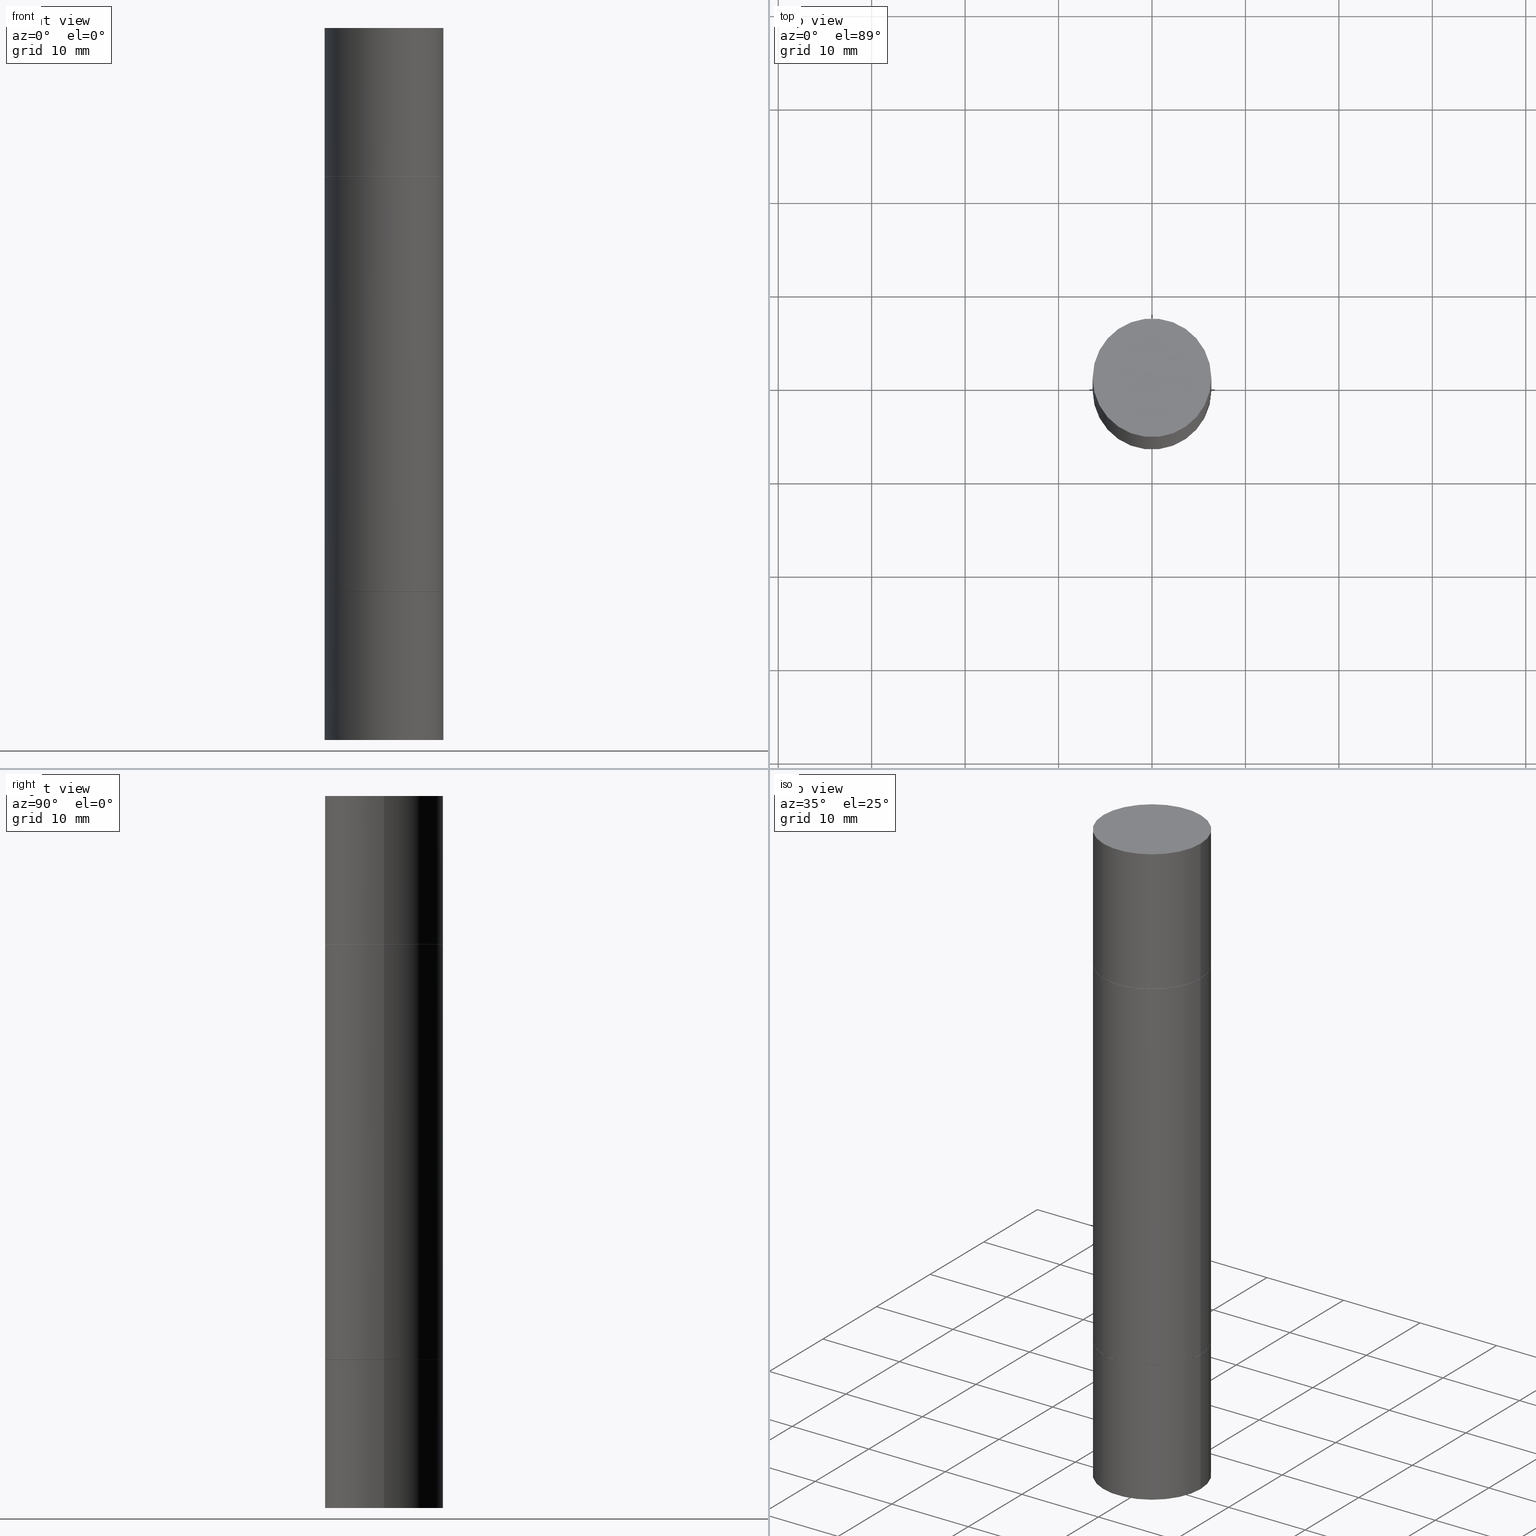
[diagram: canonical four-view strip — front | top / right | iso, engineering-drawing reading convention]
A machine part, canonical four-view strip (front | top / right | iso — engineering-drawing reading convention). The complete STEP part file that produces these views, byte-faithful:
ISO-10303-21;
HEADER;
FILE_DESCRIPTION (( 'STEP AP203' ),
    '1' );
FILE_NAME ('39639.STEP',
    '2024-03-04T15:43:50',
    ( '' ),
    ( '' ),
    'SwSTEP 2.0',
    'SolidWorks 2023',
    '' );
FILE_SCHEMA (( 'CONFIG_CONTROL_DESIGN' ));
ENDSEC;

DATA;
#1 = EDGE_CURVE ( 'NONE', #656, #668, #149, .T. ) ;
#2 = DIRECTION ( 'NONE',  ( 1.000000000000000000, -6.982962677686266711E-15, 0.000000000000000000 ) ) ;
#3 = PLANE ( 'NONE',  #558 ) ;
#4 = ORIENTED_EDGE ( 'NONE', *, *, #201, .F. ) ;
#5 = AXIS2_PLACEMENT_3D ( 'NONE', #102, #266, #150 ) ;
#6 = DIRECTION ( 'NONE',  ( -2.438088387897959769E-29, -3.492890411551753071E-15, -1.000000000000000000 ) ) ;
#7 = CARTESIAN_POINT ( 'NONE',  ( 5.807988414689700538E-29, -8.292268179752471696E-15, -2.375000000000000000 ) ) ;
#8 = DIRECTION ( 'NONE',  ( 1.000000000000000000, -6.982962677686267499E-15, 0.000000000000000000 ) ) ;
#9 = DIRECTION ( 'NONE',  ( -2.445468806185136597E-29, -3.492890411551752677E-15, -1.000000000000000000 ) ) ;
#10 = EDGE_LOOP ( 'NONE', ( #41, #455, #50, #465 ) ) ;
#11 = VERTEX_POINT ( 'NONE', #192 ) ;
#12 = DIRECTION ( 'NONE',  ( 1.000000000000000000, -6.982962677686266711E-15, 0.000000000000000000 ) ) ;
#13 = ADVANCED_FACE ( 'NONE', ( #354 ), #37, .F. ) ;
#14 = DIRECTION ( 'NONE',  ( -2.445468806185136877E-29, -3.492890411551753071E-15, -1.000000000000000000 ) ) ;
#15 = VERTEX_POINT ( 'NONE', #109 ) ;
#16 =( NAMED_UNIT ( * ) SI_UNIT ( $, .STERADIAN. ) SOLID_ANGLE_UNIT ( ) );
#17 = CIRCLE ( 'NONE', #380, 0.2500000000000000000 ) ;
#18 = FACE_OUTER_BOUND ( 'NONE', #200, .T. ) ;
#19 = EDGE_CURVE ( 'NONE', #11, #338, #366, .T. ) ;
#20 = ORIENTED_EDGE ( 'NONE', *, *, #309, .T. ) ;
#21 = PERSON_AND_ORGANIZATION ( #100, #93 ) ;
#22 = DIRECTION ( 'NONE',  ( -2.445468806185136597E-29, 3.491481338843145583E-15, 1.000000000000000000 ) ) ;
#23 = VERTEX_POINT ( 'NONE', #156 ) ;
#24 = EDGE_CURVE ( 'NONE', #352, #222, #606, .T. ) ;
#25 = CARTESIAN_POINT ( 'NONE',  ( 0.000000000000000000, 0.000000000000000000, 0.000000000000000000 ) ) ;
#26 = CARTESIAN_POINT ( 'NONE',  ( -0.2500000000000000000, 1.776356839400250465E-15, -1.229733772563726445E-29 ) ) ;
#27 = CONICAL_SURFACE ( 'NONE', #392, 0.2489999999999999991, 0.7853981633974141952 ) ;
#28 = CIRCLE ( 'NONE', #70, 0.2500000000000000000 ) ;
#29 = PLANE ( 'NONE',  #91 ) ;
#30 = DATE_TIME_ROLE ( 'creation_date' ) ;
#31 = EDGE_CURVE ( 'NONE', #15, #136, #584, .T. ) ;
#32 = CARTESIAN_POINT ( 'NONE',  ( 0.000000000000000000, 0.000000000000000000, -1.499999999999999556 ) ) ;
#33 = ORIENTED_EDGE ( 'NONE', *, *, #550, .F. ) ;
#34 = SHAPE_DEFINITION_REPRESENTATION ( #678, #121 ) ;
#35 = ORIENTED_EDGE ( 'NONE', *, *, #113, .F. ) ;
#36 = DIRECTION ( 'NONE',  ( -2.445468806185136877E-29, -3.492890411551753071E-15, -1.000000000000000000 ) ) ;
#37 = PLANE ( 'NONE',  #661 ) ;
#38 = CALENDAR_DATE ( 2024, 4, 3 ) ;
#39 = DIRECTION ( 'NONE',  ( 1.000000000000000000, -6.982962677686270655E-15, 0.000000000000000000 ) ) ;
#40 = CIRCLE ( 'NONE', #532, 0.2500000000000000000 ) ;
#41 = ORIENTED_EDGE ( 'NONE', *, *, #318, .F. ) ;
#42 = EDGE_LOOP ( 'NONE', ( #286, #619, #629, #294 ) ) ;
#43 = DIRECTION ( 'NONE',  ( -2.445468806185136597E-29, -3.492890411551752677E-15, -1.000000000000000000 ) ) ;
#44 = EDGE_CURVE ( 'NONE', #469, #447, #643, .T. ) ;
#45 = PRODUCT_RELATED_PRODUCT_CATEGORY ( 'detail', '', ( #566 ) ) ;
#46 = CARTESIAN_POINT ( 'NONE',  ( 0.2500000000000000000, -3.926683567578497071E-15, -0.6249999999999988898 ) ) ;
#47 = CYLINDRICAL_SURFACE ( 'NONE', #337, 0.2500000000000000000 ) ;
#48 = AXIS2_PLACEMENT_3D ( 'NONE', #117, #217, #264 ) ;
#49 = AXIS2_PLACEMENT_3D ( 'NONE', #516, #464, #194 ) ;
#50 = ORIENTED_EDGE ( 'NONE', *, *, #511, .T. ) ;
#51 = PLANE ( 'NONE',  #495 ) ;
#52 = APPROVAL ( #332, 'UNSPECIFIED' ) ;
#53 = CARTESIAN_POINT ( 'NONE',  ( 0.2500000000000000000, -3.930176457990049608E-15, -0.6259999999999990017 ) ) ;
#54 = DIRECTION ( 'NONE',  ( 1.000000000000000000, -6.982962677686267499E-15, 0.000000000000000000 ) ) ;
#55 = CARTESIAN_POINT ( 'NONE',  ( 5.807988414689700538E-29, -8.292268179752471696E-15, -2.375000000000000000 ) ) ;
#56 = CYLINDRICAL_SURFACE ( 'NONE', #80, 0.2500000000000000000 ) ;
#57 = CIRCLE ( 'NONE', #367, 0.2500000000000000000 ) ;
#58 = ADVANCED_FACE ( 'NONE', ( #161 ), #27, .T. ) ;
#59 = VECTOR ( 'NONE', #484, 39.37007874015748854 ) ;
#60 = DIRECTION ( 'NONE',  ( 2.438088387897959769E-29, 3.492890411551753071E-15, 1.000000000000000000 ) ) ;
#61 = LINE ( 'NONE', #482, #444 ) ;
#62 = MANIFOLD_SOLID_BREP ( 'Mirror1[4]', #103 ) ;
#63 = DESIGN_CONTEXT ( 'detailed design', #603, 'design' ) ;
#64 = ADVANCED_FACE ( 'NONE', ( #373 ), #569, .T. ) ;
#65 = DIRECTION ( 'NONE',  ( -1.000000000000000000, 6.982962677686265922E-15, -9.839502134516470631E-33 ) ) ;
#66 = LINE ( 'NONE', #267, #492 ) ;
#67 = DATE_AND_TIME ( #609, #274 ) ;
#68 = DIRECTION ( 'NONE',  ( -2.445468806185136597E-29, -3.492890411551752677E-15, -1.000000000000000000 ) ) ;
#69 = VECTOR ( 'NONE', #255, 39.37007874015748854 ) ;
#70 = AXIS2_PLACEMENT_3D ( 'NONE', #630, #362, #146 ) ;
#71 = ORIENTED_EDGE ( 'NONE', *, *, #503, .F. ) ;
#72 = AXIS2_PLACEMENT_3D ( 'NONE', #399, #78, #383 ) ;
#73 = PERSON_AND_ORGANIZATION_ROLE ( 'design_supplier' ) ;
#74 = DIRECTION ( 'NONE',  ( 1.000000000000000000, -6.982962677686266711E-15, 0.000000000000000000 ) ) ;
#75 = ORIENTED_EDGE ( 'NONE', *, *, #44, .F. ) ;
#76 = APPROVAL_ROLE ( '' ) ;
#77 = CARTESIAN_POINT ( 'NONE',  ( 0.2500000000000000000, -3.926683567578497071E-15, -0.6249999999999988898 ) ) ;
#78 = DIRECTION ( 'NONE',  ( 2.445468806185136597E-29, 3.492890411551752677E-15, 1.000000000000000000 ) ) ;
#79 = CARTESIAN_POINT ( 'NONE',  ( 0.2489999999999999991, -3.919700604900811057E-15, -0.6249999999999988898 ) ) ;
#80 = AXIS2_PLACEMENT_3D ( 'NONE', #639, #599, #110 ) ;
#81 = CARTESIAN_POINT ( 'NONE',  ( 7.336406418555409790E-29, -1.047444401652943635E-14, -3.000000000000000444 ) ) ;
#82 = CIRCLE ( 'NONE', #72, 0.2500000000000000000 ) ;
#83 = ORIENTED_EDGE ( 'NONE', *, *, #113, .T. ) ;
#84 = ORIENTED_EDGE ( 'NONE', *, *, #363, .T. ) ;
#85 = ADVANCED_FACE ( 'NONE', ( #635 ), #425, .T. ) ;
#86 = EDGE_LOOP ( 'NONE', ( #478, #463 ) ) ;
#87 = DIRECTION ( 'NONE',  ( -2.445468806185136597E-29, -3.492890411551752677E-15, -1.000000000000000000 ) ) ;
#88 = CARTESIAN_POINT ( 'NONE',  ( 0.000000000000000000, -1.047655762559234344E-14, -2.999999999999999112 ) ) ;
#89 = PERSON_AND_ORGANIZATION ( #100, #93 ) ;
#90 = CARTESIAN_POINT ( 'NONE',  ( -0.2500000000000000000, -4.693112891255996450E-16, -0.6259999999999990017 ) ) ;
#91 = AXIS2_PLACEMENT_3D ( 'NONE', #493, #614, #349 ) ;
#92 = ORIENTED_EDGE ( 'NONE', *, *, #363, .F. ) ;
#93 = ORGANIZATION ( 'UNSPECIFIED', 'UNSPECIFIED', '' ) ;
#94 = ADVANCED_FACE ( 'NONE', ( #477 ), #3, .F. ) ;
#95 = CARTESIAN_POINT ( 'NONE',  ( 0.2500000000000000000, -1.222229829501391170E-14, -2.999999999999999112 ) ) ;
#96 = VERTEX_POINT ( 'NONE', #421 ) ;
#97 = DATE_TIME_ROLE ( 'classification_date' ) ;
#98 = FACE_OUTER_BOUND ( 'NONE', #10, .T. ) ;
#99 = ORIENTED_EDGE ( 'NONE', *, *, #281, .T. ) ;
#100 = PERSON ( 'UNSPECIFIED', 'UNSPECIFIED', 'UNSPECIFIED', ('UNSPECIFIED'), ('UNSPECIFIED'), ('UNSPECIFIED') ) ;
#101 = APPROVAL ( #548, 'UNSPECIFIED' ) ;
#102 = CARTESIAN_POINT ( 'NONE',  ( 1.745740669421624462E-15, 0.2499999999999917011, -2.375000000000000888 ) ) ;
#103 = CLOSED_SHELL ( 'NONE', ( #218, #235, #94, #162 ) ) ;
#104 = AXIS2_PLACEMENT_3D ( 'NONE', #567, #673, #237 ) ;
#105 = AXIS2_PLACEMENT_3D ( 'NONE', #55, #111, #646 ) ;
#106 = PLANE ( 'NONE',  #164 ) ;
#107 = DIRECTION ( 'NONE',  ( 0.7071067811865232589, -2.468850131082003836E-15, 0.7071067811865715536 ) ) ;
#108 = DIRECTION ( 'NONE',  ( -2.445468806185136597E-29, -3.492890411551752677E-15, -1.000000000000000000 ) ) ;
#109 = CARTESIAN_POINT ( 'NONE',  ( -0.2500000000000000000, 6.257098548958748880E-16, 1.092739197465709232E-15 ) ) ;
#110 = DIRECTION ( 'NONE',  ( 1.000000000000000000, -6.982962677686270655E-15, 0.000000000000000000 ) ) ;
#111 = DIRECTION ( 'NONE',  ( -2.445468806185136597E-29, 3.491481338843145583E-15, 1.000000000000000000 ) ) ;
#112 = CYLINDRICAL_SURFACE ( 'NONE', #500, 0.2499999999999998335 ) ;
#113 = EDGE_CURVE ( 'NONE', #307, #11, #370, .T. ) ;
#114 = CIRCLE ( 'NONE', #457, 0.2500000000000000000 ) ;
#115 = ORIENTED_EDGE ( 'NONE', *, *, #138, .T. ) ;
#116 = DIRECTION ( 'NONE',  ( 1.000000000000000000, -6.982962677686266711E-15, 0.000000000000000000 ) ) ;
#117 = CARTESIAN_POINT ( 'NONE',  ( 0.000000000000000000, 0.000000000000000000, 0.000000000000000000 ) ) ;
#118 = DIRECTION ( 'NONE',  ( -2.445468806185136597E-29, -3.492890411551752677E-15, -1.000000000000000000 ) ) ;
#119 = ORIENTED_EDGE ( 'NONE', *, *, #511, .F. ) ;
#120 = CARTESIAN_POINT ( 'NONE',  ( 5.805542945883514935E-29, -2.184435788568482141E-15, -0.6259999999999990017 ) ) ;
#121 = ADVANCED_BREP_SHAPE_REPRESENTATION ( '39639', ( #519, #292, #283, #62, #525, #252 ), #189 ) ;
#122 = ORIENTED_EDGE ( 'NONE', *, *, #488, .F. ) ;
#123 = AXIS2_PLACEMENT_3D ( 'NONE', #244, #353, #139 ) ;
#124 = PERSON_AND_ORGANIZATION ( #100, #93 ) ;
#125 = DIRECTION ( 'NONE',  ( 0.000000000000000000, 3.492185875197449524E-15, 1.000000000000000000 ) ) ;
#126 = DIRECTION ( 'NONE',  ( -1.000000000000000000, 6.982962677686265922E-15, -9.839502134516470631E-33 ) ) ;
#127 = ORIENTED_EDGE ( 'NONE', *, *, #498, .F. ) ;
#128 = ORIENTED_EDGE ( 'NONE', *, *, #577, .T. ) ;
#129 = EDGE_LOOP ( 'NONE', ( #490, #248, #92, #547 ) ) ;
#130 = DATE_AND_TIME ( #442, #675 ) ;
#131 = DIRECTION ( 'NONE',  ( 1.000000000000000000, -6.982962677686266711E-15, 0.000000000000000000 ) ) ;
#132 = PRODUCT_DEFINITION ( 'UNKNOWN', '', #571, #63 ) ;
#133 = CIRCLE ( 'NONE', #456, 0.2489999999999999991 ) ;
#134 = CARTESIAN_POINT ( 'NONE',  ( -0.2489999999999999991, -6.517718313361599048E-15, -2.375000000000000000 ) ) ;
#135 = VERTEX_POINT ( 'NONE', #590 ) ;
#136 = VERTEX_POINT ( 'NONE', #485 ) ;
#137 = CYLINDRICAL_SURFACE ( 'NONE', #645, 0.2500000000000000000 ) ;
#138 = EDGE_CURVE ( 'NONE', #222, #656, #61, .T. ) ;
#139 = DIRECTION ( 'NONE',  ( 1.000000000000000000, -6.982962677686266711E-15, 0.000000000000000000 ) ) ;
#140 = DATE_AND_TIME ( #561, #229 ) ;
#141 = DIRECTION ( 'NONE',  ( 1.000000000000000000, -6.982962677686266711E-15, 0.000000000000000000 ) ) ;
#142 = VECTOR ( 'NONE', #564, 39.37007874015748854 ) ;
#143 = ORIENTED_EDGE ( 'NONE', *, *, #520, .F. ) ;
#144 = AXIS2_PLACEMENT_3D ( 'NONE', #679, #634, #368 ) ;
#145 = ORIENTED_EDGE ( 'NONE', *, *, #530, .F. ) ;
#146 = DIRECTION ( 'NONE',  ( 1.000000000000000000, -6.982962677686266711E-15, 0.000000000000000000 ) ) ;
#147 = ORIENTED_EDGE ( 'NONE', *, *, #520, .T. ) ;
#148 = DIRECTION ( 'NONE',  ( -2.445468806185136597E-29, -3.492890411551752677E-15, -1.000000000000000000 ) ) ;
#149 = LINE ( 'NONE', #467, #625 ) ;
#150 = DIRECTION ( 'NONE',  ( -1.000000000000000000, 6.982962677686265922E-15, -4.876176775795935793E-29 ) ) ;
#151 = AXIS2_PLACEMENT_3D ( 'NONE', #375, #324, #215 ) ;
#152 = DIRECTION ( 'NONE',  ( 1.000000000000000000, -6.982962677686267499E-15, 0.000000000000000000 ) ) ;
#153 = CIRCLE ( 'NONE', #105, 0.2500000000000000000 ) ;
#154 = AXIS2_PLACEMENT_3D ( 'NONE', #203, #427, #589 ) ;
#155 = CARTESIAN_POINT ( 'NONE',  ( 5.807988414689700538E-29, -2.180942898156930788E-15, -0.6249999999999988898 ) ) ;
#156 = CARTESIAN_POINT ( 'NONE',  ( 0.2500000000000000000, -1.743627060358652092E-15, 1.092739197465705287E-15 ) ) ;
#157 = CYLINDRICAL_SURFACE ( 'NONE', #647, 0.2499999999999998335 ) ;
#158 = ADVANCED_FACE ( 'NONE', ( #213 ), #112, .T. ) ;
#159 = DIRECTION ( 'NONE',  ( 1.000000000000000000, -6.982962677686269866E-15, 0.000000000000000000 ) ) ;
#160 = DIRECTION ( 'NONE',  ( 2.445468806185136597E-29, 3.492890411551752677E-15, 1.000000000000000000 ) ) ;
#161 = FACE_OUTER_BOUND ( 'NONE', #195, .T. ) ;
#162 = ADVANCED_FACE ( 'NONE', ( #208 ), #56, .T. ) ;
#163 = AXIS2_PLACEMENT_3D ( 'NONE', #241, #246, #305 ) ;
#164 = AXIS2_PLACEMENT_3D ( 'NONE', #476, #6, #256 ) ;
#165 = CARTESIAN_POINT ( 'NONE',  ( 5.807988414689700538E-29, -2.180942898156930788E-15, -0.6249999999999988898 ) ) ;
#166 = ORIENTED_EDGE ( 'NONE', *, *, #672, .F. ) ;
#167 = PERSON_AND_ORGANIZATION_ROLE ( 'creator' ) ;
#168 = DIRECTION ( 'NONE',  ( 1.000000000000000000, -6.982962677686266711E-15, 0.000000000000000000 ) ) ;
#169 = ORIENTED_EDGE ( 'NONE', *, *, #1, .T. ) ;
#170 = APPLICATION_PROTOCOL_DEFINITION ( 'international standard', 'config_control_design', 1994, #311 ) ;
#171 = DIRECTION ( 'NONE',  ( 2.445468806185136597E-29, 3.492890411551752677E-15, 1.000000000000000000 ) ) ;
#172 = CIRCLE ( 'NONE', #445, 0.2489999999999999991 ) ;
#173 = CC_DESIGN_APPROVAL ( #52, ( #571 ) ) ;
#174 = APPROVAL_DATE_TIME ( #130, #101 ) ;
#175 = ADVANCED_FACE ( 'NONE', ( #641 ), #529, .T. ) ;
#176 = CARTESIAN_POINT ( 'NONE',  ( 0.2489999999999999991, -1.003102588649635236E-14, -2.375000000000000000 ) ) ;
#177 = EDGE_LOOP ( 'NONE', ( #450, #662 ) ) ;
#178 = EDGE_LOOP ( 'NONE', ( #247, #71, #183, #466 ) ) ;
#179 = APPLICATION_PROTOCOL_DEFINITION ( 'international standard', 'config_control_design', 1994, #603 ) ;
#180 = CARTESIAN_POINT ( 'NONE',  ( 5.807988414689700538E-29, -2.180942898156930788E-15, -0.6249999999999988898 ) ) ;
#181 = EDGE_CURVE ( 'NONE', #268, #307, #133, .T. ) ;
#182 = VERTEX_POINT ( 'NONE', #330 ) ;
#183 = ORIENTED_EDGE ( 'NONE', *, *, #238, .T. ) ;
#184 = LINE ( 'NONE', #234, #423 ) ;
#185 = ORIENTED_EDGE ( 'NONE', *, *, #288, .T. ) ;
#186 = EDGE_LOOP ( 'NONE', ( #4, #253, #169, #398 ) ) ;
#187 = VECTOR ( 'NONE', #518, 39.37007874015748143 ) ;
#188 = CARTESIAN_POINT ( 'NONE',  ( -0.2489999999999999991, -4.709950929187094786E-16, -0.6249999999999988898 ) ) ;
#189 =( GEOMETRIC_REPRESENTATION_CONTEXT ( 3 ) GLOBAL_UNCERTAINTY_ASSIGNED_CONTEXT ( ( #243 ) ) GLOBAL_UNIT_ASSIGNED_CONTEXT ( ( #339, #544, #16 ) ) REPRESENTATION_CONTEXT ( 'NONE', 'WORKASPACE' ) );
#190 = EDGE_CURVE ( 'NONE', #674, #668, #219, .T. ) ;
#191 = CARTESIAN_POINT ( 'NONE',  ( -0.2499999999999998335, -8.761433126149462132E-15, -2.999999999999999112 ) ) ;
#192 = CARTESIAN_POINT ( 'NONE',  ( 0.2500000000000000000, -1.003451736783519537E-14, -2.374000000000000110 ) ) ;
#193 = CC_DESIGN_PERSON_AND_ORGANIZATION_ASSIGNMENT ( #437, #167, ( #571 ) ) ;
#194 = DIRECTION ( 'NONE',  ( 1.000000000000000000, -6.982962677686266711E-15, 4.876176775795935793E-29 ) ) ;
#195 = EDGE_LOOP ( 'NONE', ( #677, #513, #115, #265 ) ) ;
#196 = DIRECTION ( 'NONE',  ( 1.000000000000000000, -6.982962677686269866E-15, 0.000000000000000000 ) ) ;
#197 = VECTOR ( 'NONE', #310, 39.37007874015748143 ) ;
#198 = ORIENTED_EDGE ( 'NONE', *, *, #410, .F. ) ;
#199 = FACE_OUTER_BOUND ( 'NONE', #361, .T. ) ;
#200 = EDGE_LOOP ( 'NONE', ( #84, #371 ) ) ;
#201 = EDGE_CURVE ( 'NONE', #506, #674, #66, .T. ) ;
#202 = ORIENTED_EDGE ( 'NONE', *, *, #415, .F. ) ;
#203 = CARTESIAN_POINT ( 'NONE',  ( 5.807988414689700538E-29, -2.180942898156930788E-15, -0.6249999999999988898 ) ) ;
#204 = DIRECTION ( 'NONE',  ( 2.438088387897959769E-29, 3.492890411551753071E-15, 1.000000000000000000 ) ) ;
#205 = ADVANCED_FACE ( 'NONE', ( #435 ), #260, .T. ) ;
#206 = FACE_OUTER_BOUND ( 'NONE', #409, .T. ) ;
#207 = CLOSED_SHELL ( 'NONE', ( #381, #303, #562, #389 ) ) ;
#208 = FACE_OUTER_BOUND ( 'NONE', #414, .T. ) ;
#209 = AXIS2_PLACEMENT_3D ( 'NONE', #165, #396, #556 ) ;
#210 = SECURITY_CLASSIFICATION ( '', '', #275 ) ;
#211 = EDGE_CURVE ( 'NONE', #452, #182, #184, .T. ) ;
#212 = DIRECTION ( 'NONE',  ( 2.438088387897960049E-29, -3.491481338843145188E-15, -1.000000000000000000 ) ) ;
#213 = FACE_OUTER_BOUND ( 'NONE', #178, .T. ) ;
#214 = CARTESIAN_POINT ( 'NONE',  ( 5.805542945883514935E-29, -2.184435788568482141E-15, -0.6259999999999990017 ) ) ;
#215 = DIRECTION ( 'NONE',  ( 0.000000000000000000, 1.000000000000000000, -3.278217592397118229E-15 ) ) ;
#216 = PLANE ( 'NONE',  #5 ) ;
#217 = DIRECTION ( 'NONE',  ( -2.445468806185136597E-29, 3.491481338843145583E-15, 1.000000000000000000 ) ) ;
#218 = ADVANCED_FACE ( 'NONE', ( #438 ), #449, .T. ) ;
#219 = CIRCLE ( 'NONE', #151, 0.2499999999999998335 ) ;
#220 = CIRCLE ( 'NONE', #273, 0.2489999999999999991 ) ;
#221 = DIRECTION ( 'NONE',  ( -2.445468806185136597E-29, 3.491481338843145583E-15, 1.000000000000000000 ) ) ;
#222 = VERTEX_POINT ( 'NONE', #79 ) ;
#223 = ORIENTED_EDGE ( 'NONE', *, *, #19, .F. ) ;
#224 = APPROVAL_ROLE ( '' ) ;
#225 = CARTESIAN_POINT ( 'NONE',  ( 5.807988414689700538E-29, -8.292268179752471696E-15, -2.375000000000000000 ) ) ;
#226 = PERSON_AND_ORGANIZATION_ROLE ( 'design_owner' ) ;
#227 = DIRECTION ( 'NONE',  ( -2.445468806185136877E-29, 3.491481338843145188E-15, 1.000000000000000000 ) ) ;
#228 = AXIS2_PLACEMENT_3D ( 'NONE', #521, #351, #357 ) ;
#229 = LOCAL_TIME ( 10, 43, 50.00000000000000000, #459 ) ;
#230 = EDGE_CURVE ( 'NONE', #416, #271, #658, .T. ) ;
#231 = DIRECTION ( 'NONE',  ( 0.000000000000000000, 0.000000000000000000, 1.000000000000000000 ) ) ;
#232 = DIRECTION ( 'NONE',  ( 0.000000000000000000, 1.000000000000000000, -3.492185875197449524E-15 ) ) ;
#233 = CALENDAR_DATE ( 2024, 4, 3 ) ;
#234 = CARTESIAN_POINT ( 'NONE',  ( 0.2500000000000000000, -1.745740669421566678E-15, 1.219044193948983948E-29 ) ) ;
#235 = ADVANCED_FACE ( 'NONE', ( #657 ), #505, .T. ) ;
#236 = ORIENTED_EDGE ( 'NONE', *, *, #577, .F. ) ;
#237 = DIRECTION ( 'NONE',  ( 1.000000000000000000, -6.982962677686267499E-15, 0.000000000000000000 ) ) ;
#238 = EDGE_CURVE ( 'NONE', #517, #11, #443, .T. ) ;
#239 = CIRCLE ( 'NONE', #325, 0.2500000000000000000 ) ;
#240 = APPROVAL_ROLE ( '' ) ;
#241 = CARTESIAN_POINT ( 'NONE',  ( 3.668203209277703774E-29, -5.237222008264716599E-15, -1.499999999999999556 ) ) ;
#242 = APPROVAL ( #507, 'UNSPECIFIED' ) ;
#243 = UNCERTAINTY_MEASURE_WITH_UNIT (LENGTH_MEASURE( 1.000000000000000082E-05 ), #339, 'distance_accuracy_value', 'NONE');
#244 = CARTESIAN_POINT ( 'NONE',  ( 5.805542945883514935E-29, -2.184435788568482141E-15, -0.6259999999999990017 ) ) ;
#245 = VERTEX_POINT ( 'NONE', #77 ) ;
#246 = DIRECTION ( 'NONE',  ( -0.000000000000000000, -3.492185875197449130E-15, -1.000000000000000000 ) ) ;
#247 = ORIENTED_EDGE ( 'NONE', *, *, #386, .F. ) ;
#248 = ORIENTED_EDGE ( 'NONE', *, *, #201, .T. ) ;
#249 = CC_DESIGN_PERSON_AND_ORGANIZATION_ASSIGNMENT ( #124, #226, ( #566 ) ) ;
#250 = LINE ( 'NONE', #576, #197 ) ;
#251 = CIRCLE ( 'NONE', #346, 0.2500000000000000000 ) ;
#252 = AXIS2_PLACEMENT_3D ( 'NONE', #25, #231, #598 ) ;
#253 = ORIENTED_EDGE ( 'NONE', *, *, #341, .F. ) ;
#254 = LINE ( 'NONE', #263, #59 ) ;
#255 = DIRECTION ( 'NONE',  ( -0.7071067811865232589, 2.381258160591016070E-15, -0.7071067811865715536 ) ) ;
#256 = DIRECTION ( 'NONE',  ( 1.000000000000000000, -6.982962677686265922E-15, 9.839502134516470631E-33 ) ) ;
#257 = DIRECTION ( 'NONE',  ( -2.445468806185136597E-29, -3.492890411551752677E-15, -1.000000000000000000 ) ) ;
#258 = DIRECTION ( 'NONE',  ( -1.000000000000000000, 6.982962677686265922E-15, -4.876176775795935793E-29 ) ) ;
#259 = DIRECTION ( 'NONE',  ( 1.000000000000000000, -6.982962677686266711E-15, 0.000000000000000000 ) ) ;
#260 = CONICAL_SURFACE ( 'NONE', #209, 0.2489999999999999991, 0.7853981633974141952 ) ;
#261 = LOCAL_TIME ( 10, 43, 50.00000000000000000, #360 ) ;
#262 = ORIENTED_EDGE ( 'NONE', *, *, #503, .T. ) ;
#263 = CARTESIAN_POINT ( 'NONE',  ( 0.2489999999999999991, -3.919700604900811057E-15, -0.6249999999999988898 ) ) ;
#264 = DIRECTION ( 'NONE',  ( 1.000000000000000000, -6.982962677686266711E-15, 4.876176775795935793E-29 ) ) ;
#265 = ORIENTED_EDGE ( 'NONE', *, *, #341, .T. ) ;
#266 = DIRECTION ( 'NONE',  ( 2.438088387897960049E-29, -3.491481338843145188E-15, -1.000000000000000000 ) ) ;
#267 = CARTESIAN_POINT ( 'NONE',  ( -0.2499999999999998335, -8.761433126149462132E-15, -2.999999999999999112 ) ) ;
#268 = VERTEX_POINT ( 'NONE', #134 ) ;
#269 = APPROVAL_DATE_TIME ( #67, #52 ) ;
#270 = CARTESIAN_POINT ( 'NONE',  ( 0.2499999999999998335, -1.222229829501391012E-14, -2.999999999999999112 ) ) ;
#271 = VERTEX_POINT ( 'NONE', #610 ) ;
#272 = CLOSED_SHELL ( 'NONE', ( #472, #611, #597, #175 ) ) ;
#273 = AXIS2_PLACEMENT_3D ( 'NONE', #155, #524, #12 ) ;
#274 = LOCAL_TIME ( 10, 43, 50.00000000000000000, #541 ) ;
#275 = SECURITY_CLASSIFICATION_LEVEL ( 'unclassified' ) ;
#276 = CARTESIAN_POINT ( 'NONE',  ( 5.807988414689700538E-29, -2.180942898156930788E-15, -0.6249999999999988898 ) ) ;
#277 = ADVANCED_FACE ( 'NONE', ( #18 ), #282, .F. ) ;
#278 = ORIENTED_EDGE ( 'NONE', *, *, #281, .F. ) ;
#279 = CARTESIAN_POINT ( 'NONE',  ( 7.336406418555409790E-29, 2.113609062914567177E-18, 1.092739197465705287E-15 ) ) ;
#280 = ORIENTED_EDGE ( 'NONE', *, *, #31, .F. ) ;
#281 = EDGE_CURVE ( 'NONE', #245, #408, #239, .T. ) ;
#282 = PLANE ( 'NONE',  #653 ) ;
#283 = MANIFOLD_SOLID_BREP ( 'Mirror1[3]', #207 ) ;
#284 = ORIENTED_EDGE ( 'NONE', *, *, #637, .T. ) ;
#285 = AXIS2_PLACEMENT_3D ( 'NONE', #333, #539, #152 ) ;
#286 = ORIENTED_EDGE ( 'NONE', *, *, #24, .F. ) ;
#287 = AXIS2_PLACEMENT_3D ( 'NONE', #279, #171, #451 ) ;
#288 = EDGE_CURVE ( 'NONE', #15, #531, #300, .T. ) ;
#289 = COORDINATED_UNIVERSAL_TIME_OFFSET ( 5, 0, .BEHIND. ) ;
#290 = DIRECTION ( 'NONE',  ( -2.445468806185136597E-29, 3.491481338843145583E-15, 1.000000000000000000 ) ) ;
#291 = DIRECTION ( 'NONE',  ( 2.438088387897959769E-29, 3.492890411551753071E-15, 1.000000000000000000 ) ) ;
#292 = MANIFOLD_SOLID_BREP ( 'Mirror1[1]', #592 ) ;
#293 = DIRECTION ( 'NONE',  ( 1.000000000000000000, -6.982962677686266711E-15, 0.000000000000000000 ) ) ;
#294 = ORIENTED_EDGE ( 'NONE', *, *, #138, .F. ) ;
#295 = CARTESIAN_POINT ( 'NONE',  ( 0.2500000000000000000, -1.222229829501391170E-14, -2.999999999999999112 ) ) ;
#296 = DIRECTION ( 'NONE',  ( -2.445468806185136597E-29, 3.491481338843145583E-15, 1.000000000000000000 ) ) ;
#297 = ORIENTED_EDGE ( 'NONE', *, *, #488, .T. ) ;
#298 = EDGE_LOOP ( 'NONE', ( #591, #559 ) ) ;
#299 = AXIS2_PLACEMENT_3D ( 'NONE', #648, #321, #385 ) ;
#300 = CIRCLE ( 'NONE', #287, 0.2500000000000000000 ) ;
#301 = CC_DESIGN_APPROVAL ( #242, ( #210 ) ) ;
#302 = FACE_OUTER_BOUND ( 'NONE', #402, .T. ) ;
#303 = ADVANCED_FACE ( 'NONE', ( #651 ), #29, .T. ) ;
#304 = ORIENTED_EDGE ( 'NONE', *, *, #331, .F. ) ;
#305 = DIRECTION ( 'NONE',  ( 0.000000000000000000, 1.000000000000000000, -3.278217592397118229E-15 ) ) ;
#306 = ORIENTED_EDGE ( 'NONE', *, *, #586, .F. ) ;
#307 = VERTEX_POINT ( 'NONE', #176 ) ;
#308 = ORIENTED_EDGE ( 'NONE', *, *, #347, .T. ) ;
#309 = EDGE_CURVE ( 'NONE', #271, #182, #369, .T. ) ;
#310 = DIRECTION ( 'NONE',  ( -2.445468806185136877E-29, -3.492890411551753071E-15, -1.000000000000000000 ) ) ;
#311 = APPLICATION_CONTEXT ( 'configuration controlled 3d designs of mechanical parts and assemblies' ) ;
#312 = FACE_OUTER_BOUND ( 'NONE', #563, .T. ) ;
#313 = CONICAL_SURFACE ( 'NONE', #514, 0.2489999999999999991, 0.7853981633974141952 ) ;
#314 = AXIS2_PLACEMENT_3D ( 'NONE', #533, #60, #65 ) ;
#315 = DIRECTION ( 'NONE',  ( 1.000000000000000000, -6.982962677686265922E-15, 9.839502134516470631E-33 ) ) ;
#316 = ORIENTED_EDGE ( 'NONE', *, *, #288, .F. ) ;
#317 = FACE_OUTER_BOUND ( 'NONE', #543, .T. ) ;
#318 = EDGE_CURVE ( 'NONE', #469, #96, #636, .T. ) ;
#319 = CARTESIAN_POINT ( 'NONE',  ( -0.2500000000000000000, -8.761433126149462132E-15, -2.999999999999999112 ) ) ;
#320 = FACE_OUTER_BOUND ( 'NONE', #350, .T. ) ;
#321 = DIRECTION ( 'NONE',  ( 2.445468806185136597E-29, 3.492890411551752677E-15, 1.000000000000000000 ) ) ;
#322 = CARTESIAN_POINT ( 'NONE',  ( 0.2500000000000000000, -1.743627060358652092E-15, 1.092739197465705287E-15 ) ) ;
#323 = VECTOR ( 'NONE', #14, 39.37007874015748143 ) ;
#324 = DIRECTION ( 'NONE',  ( -0.000000000000000000, -3.492185875197449130E-15, -1.000000000000000000 ) ) ;
#325 = AXIS2_PLACEMENT_3D ( 'NONE', #180, #441, #654 ) ;
#326 = EDGE_CURVE ( 'NONE', #452, #416, #664, .T. ) ;
#327 = ORIENTED_EDGE ( 'NONE', *, *, #586, .T. ) ;
#328 = ORIENTED_EDGE ( 'NONE', *, *, #230, .F. ) ;
#329 = CARTESIAN_POINT ( 'NONE',  ( 0.2500000000000000000, -3.930176457990049608E-15, -0.6259999999999990017 ) ) ;
#330 = CARTESIAN_POINT ( 'NONE',  ( 0.2500000000000000000, -1.003800884917403837E-14, -2.375000000000000000 ) ) ;
#331 = EDGE_CURVE ( 'NONE', #338, #11, #355, .T. ) ;
#332 = APPROVAL_STATUS ( 'not_yet_approved' ) ;
#333 = CARTESIAN_POINT ( 'NONE',  ( 0.000000000000000000, -1.047655762559234344E-14, -2.999999999999999112 ) ) ;
#334 = EDGE_LOOP ( 'NONE', ( #328, #502, #429, #671 ) ) ;
#335 = PERSON_AND_ORGANIZATION_ROLE ( 'creator' ) ;
#336 = DIRECTION ( 'NONE',  ( 2.445468806185136597E-29, 3.492890411551752677E-15, 1.000000000000000000 ) ) ;
#337 = AXIS2_PLACEMENT_3D ( 'NONE', #618, #43, #39 ) ;
#338 = VERTEX_POINT ( 'NONE', #602 ) ;
#339 =( CONVERSION_BASED_UNIT ( 'INCH', #552 ) LENGTH_UNIT ( ) NAMED_UNIT ( #345 ) );
#340 = DIRECTION ( 'NONE',  ( 1.000000000000000000, -6.982962677686266711E-15, 0.000000000000000000 ) ) ;
#341 = EDGE_CURVE ( 'NONE', #656, #506, #57, .T. ) ;
#342 = DIRECTION ( 'NONE',  ( -2.445468806185136597E-29, 3.491481338843145583E-15, 1.000000000000000000 ) ) ;
#343 = PERSON_AND_ORGANIZATION ( #100, #93 ) ;
#344 = DIRECTION ( 'NONE',  ( 1.000000000000000000, -6.982962677686262766E-15, 0.000000000000000000 ) ) ;
#345 = DIMENSIONAL_EXPONENTS ( 1.000000000000000000, 0.000000000000000000, 0.000000000000000000, 0.000000000000000000, 0.000000000000000000, 0.000000000000000000, 0.000000000000000000 ) ;
#346 = AXIS2_PLACEMENT_3D ( 'NONE', #214, #640, #2 ) ;
#347 = EDGE_CURVE ( 'NONE', #384, #136, #501, .T. ) ;
#348 = CONICAL_SURFACE ( 'NONE', #628, 0.2489999999999999991, 0.7853981633974141952 ) ;
#349 = DIRECTION ( 'NONE',  ( -1.000000000000000000, 6.982962677686265922E-15, -9.839502134516470631E-33 ) ) ;
#350 = EDGE_LOOP ( 'NONE', ( #568, #358 ) ) ;
#351 = DIRECTION ( 'NONE',  ( -2.445468806185136597E-29, 3.491481338843145583E-15, 1.000000000000000000 ) ) ;
#352 = VERTEX_POINT ( 'NONE', #496 ) ;
#353 = DIRECTION ( 'NONE',  ( 2.445468806185136597E-29, 3.492890411551752677E-15, 1.000000000000000000 ) ) ;
#354 = FACE_OUTER_BOUND ( 'NONE', #177, .T. ) ;
#355 = CIRCLE ( 'NONE', #665, 0.2500000000000000000 ) ;
#356 = CC_DESIGN_SECURITY_CLASSIFICATION ( #210, ( #571 ) ) ;
#357 = DIRECTION ( 'NONE',  ( 1.000000000000000000, -6.982962677686269866E-15, 0.000000000000000000 ) ) ;
#358 = ORIENTED_EDGE ( 'NONE', *, *, #24, .T. ) ;
#359 = EDGE_CURVE ( 'NONE', #307, #268, #172, .T. ) ;
#360 = COORDINATED_UNIVERSAL_TIME_OFFSET ( 5, 0, .BEHIND. ) ;
#361 = EDGE_LOOP ( 'NONE', ( #316, #486, #600, #612 ) ) ;
#362 = DIRECTION ( 'NONE',  ( 2.445468806185136597E-29, 3.492890411551752677E-15, 1.000000000000000000 ) ) ;
#363 = EDGE_CURVE ( 'NONE', #668, #674, #570, .T. ) ;
#364 = CARTESIAN_POINT ( 'NONE',  ( 5.807988414689700538E-29, -2.180942898156930788E-15, -0.6249999999999988898 ) ) ;
#365 = ADVANCED_FACE ( 'NONE', ( #98 ), #313, .T. ) ;
#366 = CIRCLE ( 'NONE', #512, 0.2500000000000000000 ) ;
#367 = AXIS2_PLACEMENT_3D ( 'NONE', #120, #336, #74 ) ;
#368 = DIRECTION ( 'NONE',  ( 1.000000000000000000, -6.982962677686265922E-15, 4.876176775795935793E-29 ) ) ;
#369 = CIRCLE ( 'NONE', #617, 0.2500000000000000000 ) ;
#370 = LINE ( 'NONE', #587, #434 ) ;
#371 = ORIENTED_EDGE ( 'NONE', *, *, #190, .T. ) ;
#372 = FACE_OUTER_BOUND ( 'NONE', #572, .T. ) ;
#373 = FACE_OUTER_BOUND ( 'NONE', #42, .T. ) ;
#374 = LINE ( 'NONE', #424, #446 ) ;
#375 = CARTESIAN_POINT ( 'NONE',  ( 3.668203209277703774E-29, -5.237222008264716599E-15, -1.499999999999999556 ) ) ;
#376 = EDGE_LOOP ( 'NONE', ( #75, #145, #284, #262 ) ) ;
#377 = CARTESIAN_POINT ( 'NONE',  ( 1.745740669421639647E-15, 0.2499999999999895084, -3.000000000000001332 ) ) ;
#378 = DIRECTION ( 'NONE',  ( -2.445468806185136597E-29, 3.491481338843145583E-15, 1.000000000000000000 ) ) ;
#379 = CONICAL_SURFACE ( 'NONE', #228, 0.2489999999999999991, 0.7853981633974141952 ) ;
#380 = AXIS2_PLACEMENT_3D ( 'NONE', #642, #160, #595 ) ;
#381 = ADVANCED_FACE ( 'NONE', ( #199 ), #47, .T. ) ;
#382 = CC_DESIGN_PERSON_AND_ORGANIZATION_ASSIGNMENT ( #440, #650, ( #210 ) ) ;
#383 = DIRECTION ( 'NONE',  ( 1.000000000000000000, -6.982962677686266711E-15, 0.000000000000000000 ) ) ;
#384 = VERTEX_POINT ( 'NONE', #46 ) ;
#385 = DIRECTION ( 'NONE',  ( 1.000000000000000000, -6.982962677686266711E-15, 0.000000000000000000 ) ) ;
#386 = EDGE_CURVE ( 'NONE', #447, #338, #510, .T. ) ;
#387 = PERSON_AND_ORGANIZATION ( #100, #93 ) ;
#388 = CARTESIAN_POINT ( 'NONE',  ( 1.745740669421639647E-15, 0.2500000000000000000, 5.463695987328526437E-16 ) ) ;
#389 = ADVANCED_FACE ( 'NONE', ( #471 ), #137, .T. ) ;
#390 = DIRECTION ( 'NONE',  ( 1.000000000000000000, -6.982962677686269866E-15, 0.000000000000000000 ) ) ;
#391 = DIRECTION ( 'NONE',  ( 2.445468806185136597E-29, 3.492890411551752677E-15, 1.000000000000000000 ) ) ;
#392 = AXIS2_PLACEMENT_3D ( 'NONE', #535, #9, #680 ) ;
#393 = VECTOR ( 'NONE', #36, 39.37007874015748143 ) ;
#394 = CIRCLE ( 'NONE', #154, 0.2489999999999999991 ) ;
#395 = DATE_AND_TIME ( #233, #534 ) ;
#396 = DIRECTION ( 'NONE',  ( -2.445468806185136597E-29, -3.492890411551752677E-15, -1.000000000000000000 ) ) ;
#397 = CC_DESIGN_PERSON_AND_ORGANIZATION_ASSIGNMENT ( #387, #73, ( #571 ) ) ;
#398 = ORIENTED_EDGE ( 'NONE', *, *, #190, .F. ) ;
#399 = CARTESIAN_POINT ( 'NONE',  ( 5.807988414689700538E-29, -2.180942898156930788E-15, -0.6249999999999988898 ) ) ;
#400 = DIRECTION ( 'NONE',  ( -2.445468806185136877E-29, 3.491481338843145188E-15, 1.000000000000000000 ) ) ;
#401 = ADVANCED_FACE ( 'NONE', ( #411 ), #560, .T. ) ;
#402 = EDGE_LOOP ( 'NONE', ( #551, #660, #33, #574 ) ) ;
#403 = CARTESIAN_POINT ( 'NONE',  ( 5.807988414689700538E-29, -2.180942898156930788E-15, -0.6249999999999988898 ) ) ;
#404 = AXIS2_PLACEMENT_3D ( 'NONE', #276, #608, #340 ) ;
#405 = CYLINDRICAL_SURFACE ( 'NONE', #49, 0.2500000000000000000 ) ;
#406 = EDGE_CURVE ( 'NONE', #352, #506, #620, .T. ) ;
#407 = LINE ( 'NONE', #295, #581 ) ;
#408 = VERTEX_POINT ( 'NONE', #454 ) ;
#409 = EDGE_LOOP ( 'NONE', ( #565, #166 ) ) ;
#410 = EDGE_CURVE ( 'NONE', #416, #452, #40, .T. ) ;
#411 = FACE_OUTER_BOUND ( 'NONE', #129, .T. ) ;
#412 = AXIS2_PLACEMENT_3D ( 'NONE', #81, #221, #344 ) ;
#413 = CARTESIAN_POINT ( 'NONE',  ( -0.2500000000000000000, -7.606999258740704349E-15, -3.000000000000000444 ) ) ;
#414 = EDGE_LOOP ( 'NONE', ( #202, #579, #297, #99 ) ) ;
#415 = EDGE_CURVE ( 'NONE', #135, #408, #250, .T. ) ;
#416 = VERTEX_POINT ( 'NONE', #413 ) ;
#417 = CARTESIAN_POINT ( 'NONE',  ( 5.805542945883514935E-29, -2.184435788568482141E-15, -0.6259999999999990017 ) ) ;
#418 = CC_DESIGN_DATE_AND_TIME_ASSIGNMENT ( #395, #30, ( #132 ) ) ;
#419 = ORIENTED_EDGE ( 'NONE', *, *, #426, .T. ) ;
#420 = DIRECTION ( 'NONE',  ( 1.000000000000000000, -6.982962677686266711E-15, 0.000000000000000000 ) ) ;
#421 = CARTESIAN_POINT ( 'NONE',  ( 0.2489999999999999991, -3.919700604900811057E-15, -0.6249999999999988898 ) ) ;
#422 = CC_DESIGN_DATE_AND_TIME_ASSIGNMENT ( #575, #97, ( #210 ) ) ;
#423 = VECTOR ( 'NONE', #400, 39.37007874015748143 ) ;
#424 = CARTESIAN_POINT ( 'NONE',  ( -0.2489999999999999991, -6.523016767709821450E-15, -2.375000000000000000 ) ) ;
#425 = CYLINDRICAL_SURFACE ( 'NONE', #285, 0.2499999999999998335 ) ;
#426 = EDGE_CURVE ( 'NONE', #531, #384, #407, .T. ) ;
#427 = DIRECTION ( 'NONE',  ( 2.445468806185136597E-29, 3.492890411551752677E-15, 1.000000000000000000 ) ) ;
#428 = DIRECTION ( 'NONE',  ( -1.000000000000000000, 6.982962677686265922E-15, -9.839502134516470631E-33 ) ) ;
#429 = ORIENTED_EDGE ( 'NONE', *, *, #211, .T. ) ;
#430 = EDGE_LOOP ( 'NONE', ( #280, #236, #419, #308 ) ) ;
#431 = DIRECTION ( 'NONE',  ( 2.445468806185136597E-29, 3.492890411551752677E-15, 1.000000000000000000 ) ) ;
#432 = CARTESIAN_POINT ( 'NONE',  ( 5.807988414689700538E-29, -2.180942898156930788E-15, -0.6249999999999988898 ) ) ;
#433 = DIRECTION ( 'NONE',  ( 1.000000000000000000, -6.982962677686266711E-15, 0.000000000000000000 ) ) ;
#434 = VECTOR ( 'NONE', #107, 39.37007874015748854 ) ;
#435 = FACE_OUTER_BOUND ( 'NONE', #376, .T. ) ;
#436 = CIRCLE ( 'NONE', #523, 0.2500000000000000000 ) ;
#437 = PERSON_AND_ORGANIZATION ( #100, #93 ) ;
#438 = FACE_OUTER_BOUND ( 'NONE', #631, .T. ) ;
#439 = EDGE_CURVE ( 'NONE', #506, #656, #494, .T. ) ;
#440 = PERSON_AND_ORGANIZATION ( #100, #93 ) ;
#441 = DIRECTION ( 'NONE',  ( 2.445468806185136597E-29, 3.492890411551752677E-15, 1.000000000000000000 ) ) ;
#442 = CALENDAR_DATE ( 2024, 4, 3 ) ;
#443 = LINE ( 'NONE', #270, #593 ) ;
#444 = VECTOR ( 'NONE', #527, 39.37007874015748854 ) ;
#445 = AXIS2_PLACEMENT_3D ( 'NONE', #225, #549, #196 ) ;
#446 = VECTOR ( 'NONE', #638, 39.37007874015748854 ) ;
#447 = VERTEX_POINT ( 'NONE', #90 ) ;
#448 = MECHANICAL_CONTEXT ( 'NONE', #311, 'mechanical' ) ;
#449 = CYLINDRICAL_SURFACE ( 'NONE', #470, 0.2500000000000000000 ) ;
#450 = ORIENTED_EDGE ( 'NONE', *, *, #530, .T. ) ;
#451 = DIRECTION ( 'NONE',  ( 1.000000000000000000, -6.982962677686266711E-15, 0.000000000000000000 ) ) ;
#452 = VERTEX_POINT ( 'NONE', #663 ) ;
#453 = EDGE_LOOP ( 'NONE', ( #594, #20 ) ) ;
#454 = CARTESIAN_POINT ( 'NONE',  ( -0.2500000000000000000, 6.257098548958748880E-16, -0.6249999999999988898 ) ) ;
#455 = ORIENTED_EDGE ( 'NONE', *, *, #44, .T. ) ;
#456 = AXIS2_PLACEMENT_3D ( 'NONE', #7, #378, #159 ) ;
#457 = AXIS2_PLACEMENT_3D ( 'NONE', #417, #633, #420 ) ;
#458 = CIRCLE ( 'NONE', #655, 0.2500000000000000000 ) ;
#459 = COORDINATED_UNIVERSAL_TIME_OFFSET ( 5, 0, .BEHIND. ) ;
#460 = CARTESIAN_POINT ( 'NONE',  ( -0.2489999999999999991, -4.726788967118193123E-16, -0.6249999999999988898 ) ) ;
#461 = CARTESIAN_POINT ( 'NONE',  ( 5.805542945883514935E-29, -8.288776698413628688E-15, -2.374000000000000110 ) ) ;
#462 = DIRECTION ( 'NONE',  ( -2.438088387897959769E-29, -3.492890411551753071E-15, -1.000000000000000000 ) ) ;
#463 = ORIENTED_EDGE ( 'NONE', *, *, #498, .T. ) ;
#464 = DIRECTION ( 'NONE',  ( -2.445468806185136597E-29, 3.491481338843145583E-15, 1.000000000000000000 ) ) ;
#465 = ORIENTED_EDGE ( 'NONE', *, *, #637, .F. ) ;
#466 = ORIENTED_EDGE ( 'NONE', *, *, #19, .T. ) ;
#467 = CARTESIAN_POINT ( 'NONE',  ( 0.2499999999999998335, -1.222229829501391012E-14, -2.999999999999999112 ) ) ;
#468 = CARTESIAN_POINT ( 'NONE',  ( 5.807988414689700538E-29, -2.180942898156930788E-15, -0.6249999999999988898 ) ) ;
#469 = VERTEX_POINT ( 'NONE', #188 ) ;
#470 = AXIS2_PLACEMENT_3D ( 'NONE', #499, #68, #497 ) ;
#471 = FACE_OUTER_BOUND ( 'NONE', #430, .T. ) ;
#472 = ADVANCED_FACE ( 'NONE', ( #302 ), #405, .T. ) ;
#473 = EDGE_LOOP ( 'NONE', ( #306, #605, #83, #304 ) ) ;
#474 = PLANE ( 'NONE',  #144 ) ;
#475 = CARTESIAN_POINT ( 'NONE',  ( 1.745740669421624462E-15, 0.2499999999999978073, -0.6249999999999997780 ) ) ;
#476 = CARTESIAN_POINT ( 'NONE',  ( 5.807988414689700538E-29, -2.180942898156930788E-15, -0.6249999999999988898 ) ) ;
#477 = FACE_OUTER_BOUND ( 'NONE', #536, .T. ) ;
#478 = ORIENTED_EDGE ( 'NONE', *, *, #644, .T. ) ;
#479 = AXIS2_PLACEMENT_3D ( 'NONE', #403, #391, #553 ) ;
#480 = PLANE ( 'NONE',  #314 ) ;
#481 = APPROVAL_PERSON_ORGANIZATION ( #343, #52, #224 ) ;
#482 = CARTESIAN_POINT ( 'NONE',  ( 0.2489999999999999991, -3.919700604900811057E-15, -0.6249999999999988898 ) ) ;
#483 = ADVANCED_FACE ( 'NONE', ( #622 ), #379, .T. ) ;
#484 = DIRECTION ( 'NONE',  ( 0.7071067811865232589, -7.407546758114160193E-15, -0.7071067811865715536 ) ) ;
#485 = CARTESIAN_POINT ( 'NONE',  ( -0.2500000000000000000, 6.257098548958748880E-16, -0.6249999999999988898 ) ) ;
#486 = ORIENTED_EDGE ( 'NONE', *, *, #31, .T. ) ;
#487 = FACE_OUTER_BOUND ( 'NONE', #453, .T. ) ;
#488 = EDGE_CURVE ( 'NONE', #23, #245, #573, .T. ) ;
#489 = DIRECTION ( 'NONE',  ( -2.445468806185136877E-29, -3.492890411551753071E-15, -1.000000000000000000 ) ) ;
#490 = ORIENTED_EDGE ( 'NONE', *, *, #439, .F. ) ;
#491 = CARTESIAN_POINT ( 'NONE',  ( -0.2499999999999998335, -1.995704398973716874E-15, -1.499999999999999556 ) ) ;
#492 = VECTOR ( 'NONE', #489, 39.37007874015748143 ) ;
#493 = CARTESIAN_POINT ( 'NONE',  ( 1.745740669421639647E-15, 0.2500000000000000000, 5.463695987328526437E-16 ) ) ;
#494 = CIRCLE ( 'NONE', #123, 0.2500000000000000000 ) ;
#495 = AXIS2_PLACEMENT_3D ( 'NONE', #377, #212, #258 ) ;
#496 = CARTESIAN_POINT ( 'NONE',  ( -0.2489999999999999991, -4.709950929187094786E-16, -0.6249999999999988898 ) ) ;
#497 = DIRECTION ( 'NONE',  ( 1.000000000000000000, -6.982962677686270655E-15, 0.000000000000000000 ) ) ;
#498 = EDGE_CURVE ( 'NONE', #135, #23, #28, .T. ) ;
#499 = CARTESIAN_POINT ( 'NONE',  ( 0.000000000000000000, -1.047655762559234344E-14, -2.999999999999999112 ) ) ;
#500 = AXIS2_PLACEMENT_3D ( 'NONE', #596, #118, #54 ) ;
#501 = CIRCLE ( 'NONE', #404, 0.2500000000000000000 ) ;
#502 = ORIENTED_EDGE ( 'NONE', *, *, #410, .T. ) ;
#503 = EDGE_CURVE ( 'NONE', #517, #447, #114, .T. ) ;
#504 = COORDINATED_UNIVERSAL_TIME_OFFSET ( 5, 0, .BEHIND. ) ;
#505 = PLANE ( 'NONE',  #626 ) ;
#506 = VERTEX_POINT ( 'NONE', #528 ) ;
#507 = APPROVAL_STATUS ( 'not_yet_approved' ) ;
#508 = DIRECTION ( 'NONE',  ( 1.000000000000000000, -6.982962677686270655E-15, 0.000000000000000000 ) ) ;
#509 = APPROVAL_DATE_TIME ( #140, #242 ) ;
#510 = LINE ( 'NONE', #191, #393 ) ;
#511 = EDGE_CURVE ( 'NONE', #447, #517, #251, .T. ) ;
#512 = AXIS2_PLACEMENT_3D ( 'NONE', #461, #290, #293 ) ;
#513 = ORIENTED_EDGE ( 'NONE', *, *, #623, .F. ) ;
#514 = AXIS2_PLACEMENT_3D ( 'NONE', #468, #87, #141 ) ;
#515 = CC_DESIGN_APPROVAL ( #101, ( #132 ) ) ;
#516 = CARTESIAN_POINT ( 'NONE',  ( 0.000000000000000000, 0.000000000000000000, 0.000000000000000000 ) ) ;
#517 = VERTEX_POINT ( 'NONE', #53 ) ;
#518 = DIRECTION ( 'NONE',  ( -2.445468806185136877E-29, -3.492890411551753071E-15, -1.000000000000000000 ) ) ;
#519 = MANIFOLD_SOLID_BREP ( 'Body-Move/Copy2[1]', #272 ) ;
#520 = EDGE_CURVE ( 'NONE', #408, #245, #436, .T. ) ;
#521 = CARTESIAN_POINT ( 'NONE',  ( 5.807988414689700538E-29, -8.292268179752471696E-15, -2.375000000000000000 ) ) ;
#522 = ORIENTED_EDGE ( 'NONE', *, *, #238, .F. ) ;
#523 = AXIS2_PLACEMENT_3D ( 'NONE', #364, #431, #433 ) ;
#524 = DIRECTION ( 'NONE',  ( 2.445468806185136597E-29, 3.492890411551752677E-15, 1.000000000000000000 ) ) ;
#525 = MANIFOLD_SOLID_BREP ( 'Combine1', #580 ) ;
#526 = CARTESIAN_POINT ( 'NONE',  ( 7.336406418555409790E-29, 2.113609062914567177E-18, 1.092739197465705287E-15 ) ) ;
#527 = DIRECTION ( 'NONE',  ( 0.7071067811865232589, -7.407546758114160193E-15, -0.7071067811865715536 ) ) ;
#528 = CARTESIAN_POINT ( 'NONE',  ( -0.2500000000000000000, -4.693112891255996450E-16, -0.6259999999999990017 ) ) ;
#529 = CYLINDRICAL_SURFACE ( 'NONE', #48, 0.2500000000000000000 ) ;
#530 = EDGE_CURVE ( 'NONE', #96, #469, #220, .T. ) ;
#531 = VERTEX_POINT ( 'NONE', #322 ) ;
#532 = AXIS2_PLACEMENT_3D ( 'NONE', #676, #296, #667 ) ;
#533 = CARTESIAN_POINT ( 'NONE',  ( 1.745740669421624462E-15, 0.2499999999999978073, -0.6249999999999997780 ) ) ;
#534 = LOCAL_TIME ( 10, 43, 50.00000000000000000, #504 ) ;
#535 = CARTESIAN_POINT ( 'NONE',  ( 5.807988414689700538E-29, -2.180942898156930788E-15, -0.6249999999999988898 ) ) ;
#536 = EDGE_LOOP ( 'NONE', ( #278, #143 ) ) ;
#537 = EDGE_LOOP ( 'NONE', ( #128, #185 ) ) ;
#538 = FACE_OUTER_BOUND ( 'NONE', #298, .T. ) ;
#539 = DIRECTION ( 'NONE',  ( -2.445468806185136597E-29, -3.492890411551752677E-15, -1.000000000000000000 ) ) ;
#540 = CC_DESIGN_PERSON_AND_ORGANIZATION_ASSIGNMENT ( #21, #335, ( #132 ) ) ;
#541 = COORDINATED_UNIVERSAL_TIME_OFFSET ( 5, 0, .BEHIND. ) ;
#542 = CARTESIAN_POINT ( 'NONE',  ( -0.2489999999999999991, -4.726788967118193123E-16, -0.6249999999999988898 ) ) ;
#543 = EDGE_LOOP ( 'NONE', ( #621, #327, #223, #35 ) ) ;
#544 =( NAMED_UNIT ( * ) PLANE_ANGLE_UNIT ( ) SI_UNIT ( $, .RADIAN. ) );
#545 = VECTOR ( 'NONE', #227, 39.37007874015748143 ) ;
#546 = CARTESIAN_POINT ( 'NONE',  ( 5.807988414689700538E-29, -8.292268179752471696E-15, -2.375000000000000000 ) ) ;
#547 = ORIENTED_EDGE ( 'NONE', *, *, #1, .F. ) ;
#548 = APPROVAL_STATUS ( 'not_yet_approved' ) ;
#549 = DIRECTION ( 'NONE',  ( -2.445468806185136597E-29, 3.491481338843145583E-15, 1.000000000000000000 ) ) ;
#550 = EDGE_CURVE ( 'NONE', #182, #271, #153, .T. ) ;
#551 = ORIENTED_EDGE ( 'NONE', *, *, #326, .T. ) ;
#552 = LENGTH_MEASURE_WITH_UNIT ( LENGTH_MEASURE( 0.02539999999999999897 ), #555 );
#553 = DIRECTION ( 'NONE',  ( 1.000000000000000000, -6.982962677686266711E-15, 0.000000000000000000 ) ) ;
#554 = ADVANCED_FACE ( 'NONE', ( #320 ), #106, .F. ) ;
#555 =( LENGTH_UNIT ( ) NAMED_UNIT ( * ) SI_UNIT ( $, .METRE. ) );
#556 = DIRECTION ( 'NONE',  ( 1.000000000000000000, -6.982962677686266711E-15, 0.000000000000000000 ) ) ;
#557 = CARTESIAN_POINT ( 'NONE',  ( 5.807988414689700538E-29, -2.180942898156930788E-15, -0.6249999999999988898 ) ) ;
#558 = AXIS2_PLACEMENT_3D ( 'NONE', #475, #204, #428 ) ;
#559 = ORIENTED_EDGE ( 'NONE', *, *, #181, .F. ) ;
#560 = CYLINDRICAL_SURFACE ( 'NONE', #104, 0.2499999999999998335 ) ;
#561 = CALENDAR_DATE ( 2024, 4, 3 ) ;
#562 = ADVANCED_FACE ( 'NONE', ( #206 ), #480, .F. ) ;
#563 = EDGE_LOOP ( 'NONE', ( #604, #198 ) ) ;
#564 = DIRECTION ( 'NONE',  ( -0.7071067811865232589, 2.381258160591016070E-15, -0.7071067811865715536 ) ) ;
#565 = ORIENTED_EDGE ( 'NONE', *, *, #347, .F. ) ;
#566 = PRODUCT ( '39639', '39639', '', ( #448 ) ) ;
#567 = CARTESIAN_POINT ( 'NONE',  ( 0.000000000000000000, -1.047655762559234344E-14, -2.999999999999999112 ) ) ;
#568 = ORIENTED_EDGE ( 'NONE', *, *, #623, .T. ) ;
#569 = CONICAL_SURFACE ( 'NONE', #652, 0.2489999999999999991, 0.7853981633974141952 ) ;
#570 = CIRCLE ( 'NONE', #163, 0.2499999999999998335 ) ;
#571 = PRODUCT_DEFINITION_FORMATION_WITH_SPECIFIED_SOURCE ( 'ANY', '', #566, .NOT_KNOWN. ) ;
#572 = EDGE_LOOP ( 'NONE', ( #119, #624, #588, #522 ) ) ;
#573 = LINE ( 'NONE', #95, #187 ) ;
#574 = ORIENTED_EDGE ( 'NONE', *, *, #211, .F. ) ;
#575 = DATE_AND_TIME ( #38, #261 ) ;
#576 = CARTESIAN_POINT ( 'NONE',  ( -0.2500000000000000000, -8.761433126149462132E-15, -2.999999999999999112 ) ) ;
#577 = EDGE_CURVE ( 'NONE', #531, #15, #458, .T. ) ;
#578 = DIRECTION ( 'NONE',  ( 2.445468806185136597E-29, 3.492890411551752677E-15, 1.000000000000000000 ) ) ;
#579 = ORIENTED_EDGE ( 'NONE', *, *, #644, .F. ) ;
#580 = CLOSED_SHELL ( 'NONE', ( #669, #632, #365, #13, #205, #158, #483, #659 ) ) ;
#581 = VECTOR ( 'NONE', #670, 39.37007874015748143 ) ;
#582 = APPROVAL_PERSON_ORGANIZATION ( #613, #101, #76 ) ;
#583 = CARTESIAN_POINT ( 'NONE',  ( 0.2499999999999998335, -5.456569567838164864E-15, -1.499999999999999556 ) ) ;
#584 = LINE ( 'NONE', #319, #323 ) ;
#585 = CARTESIAN_POINT ( 'NONE',  ( 0.000000000000000000, -1.047655762559234344E-14, -2.999999999999999112 ) ) ;
#586 = EDGE_CURVE ( 'NONE', #268, #338, #374, .T. ) ;
#587 = CARTESIAN_POINT ( 'NONE',  ( 0.2489999999999999991, -1.003102588649635236E-14, -2.375000000000000000 ) ) ;
#588 = ORIENTED_EDGE ( 'NONE', *, *, #331, .T. ) ;
#589 = DIRECTION ( 'NONE',  ( 1.000000000000000000, -6.982962677686266711E-15, 0.000000000000000000 ) ) ;
#590 = CARTESIAN_POINT ( 'NONE',  ( -0.2500000000000000000, 6.257098548958748880E-16, 1.092739197465709232E-15 ) ) ;
#591 = ORIENTED_EDGE ( 'NONE', *, *, #359, .F. ) ;
#592 = CLOSED_SHELL ( 'NONE', ( #401, #64, #277, #554, #58, #85 ) ) ;
#593 = VECTOR ( 'NONE', #616, 39.37007874015748143 ) ;
#594 = ORIENTED_EDGE ( 'NONE', *, *, #550, .T. ) ;
#595 = DIRECTION ( 'NONE',  ( 1.000000000000000000, -6.982962677686266711E-15, 0.000000000000000000 ) ) ;
#596 = CARTESIAN_POINT ( 'NONE',  ( 0.000000000000000000, -1.047655762559234344E-14, -2.999999999999999112 ) ) ;
#597 = ADVANCED_FACE ( 'NONE', ( #487 ), #216, .F. ) ;
#598 = DIRECTION ( 'NONE',  ( 1.000000000000000000, 0.000000000000000000, 0.000000000000000000 ) ) ;
#599 = DIRECTION ( 'NONE',  ( -2.445468806185136597E-29, -3.492890411551752677E-15, -1.000000000000000000 ) ) ;
#600 = ORIENTED_EDGE ( 'NONE', *, *, #672, .T. ) ;
#601 = DIRECTION ( 'NONE',  ( -2.445468806185136597E-29, 3.491481338843145583E-15, 1.000000000000000000 ) ) ;
#602 = CARTESIAN_POINT ( 'NONE',  ( -0.2500000000000000000, -3.522097508821832131E-15, -2.374000000000000110 ) ) ;
#603 = APPLICATION_CONTEXT ( 'configuration controlled 3d designs of mechanical parts and assemblies' ) ;
#604 = ORIENTED_EDGE ( 'NONE', *, *, #326, .F. ) ;
#605 = ORIENTED_EDGE ( 'NONE', *, *, #181, .T. ) ;
#606 = CIRCLE ( 'NONE', #299, 0.2489999999999999991 ) ;
#607 = CARTESIAN_POINT ( 'NONE',  ( 5.807988414689700538E-29, -8.292268179752471696E-15, -2.375000000000000000 ) ) ;
#608 = DIRECTION ( 'NONE',  ( 2.445468806185136597E-29, 3.492890411551752677E-15, 1.000000000000000000 ) ) ;
#609 = CALENDAR_DATE ( 2024, 4, 3 ) ;
#610 = CARTESIAN_POINT ( 'NONE',  ( -0.2500000000000000000, -7.606999258740704349E-15, -2.375000000000000000 ) ) ;
#611 = ADVANCED_FACE ( 'NONE', ( #312 ), #51, .T. ) ;
#612 = ORIENTED_EDGE ( 'NONE', *, *, #426, .F. ) ;
#613 = PERSON_AND_ORGANIZATION ( #100, #93 ) ;
#614 = DIRECTION ( 'NONE',  ( 2.438088387897959769E-29, 3.492890411551753071E-15, 1.000000000000000000 ) ) ;
#615 = ORIENTED_EDGE ( 'NONE', *, *, #415, .T. ) ;
#616 = DIRECTION ( 'NONE',  ( -2.445468806185136877E-29, -3.492890411551753071E-15, -1.000000000000000000 ) ) ;
#617 = AXIS2_PLACEMENT_3D ( 'NONE', #546, #342, #131 ) ;
#618 = CARTESIAN_POINT ( 'NONE',  ( 0.000000000000000000, -1.047655762559234344E-14, -2.999999999999999112 ) ) ;
#619 = ORIENTED_EDGE ( 'NONE', *, *, #406, .T. ) ;
#620 = LINE ( 'NONE', #460, #142 ) ;
#621 = ORIENTED_EDGE ( 'NONE', *, *, #359, .T. ) ;
#622 = FACE_OUTER_BOUND ( 'NONE', #473, .T. ) ;
#623 = EDGE_CURVE ( 'NONE', #222, #352, #394, .T. ) ;
#624 = ORIENTED_EDGE ( 'NONE', *, *, #386, .T. ) ;
#625 = VECTOR ( 'NONE', #627, 39.37007874015748143 ) ;
#626 = AXIS2_PLACEMENT_3D ( 'NONE', #388, #291, #126 ) ;
#627 = DIRECTION ( 'NONE',  ( -2.445468806185136877E-29, -3.492890411551753071E-15, -1.000000000000000000 ) ) ;
#628 = AXIS2_PLACEMENT_3D ( 'NONE', #607, #601, #390 ) ;
#629 = ORIENTED_EDGE ( 'NONE', *, *, #439, .T. ) ;
#630 = CARTESIAN_POINT ( 'NONE',  ( 7.336406418555409790E-29, 2.113609062914567177E-18, 1.092739197465705287E-15 ) ) ;
#631 = EDGE_LOOP ( 'NONE', ( #127, #615, #147, #122 ) ) ;
#632 = ADVANCED_FACE ( 'NONE', ( #372 ), #157, .T. ) ;
#633 = DIRECTION ( 'NONE',  ( 2.445468806185136597E-29, 3.492890411551752677E-15, 1.000000000000000000 ) ) ;
#634 = DIRECTION ( 'NONE',  ( -2.438088387897960049E-29, 3.491481338843145188E-15, 1.000000000000000000 ) ) ;
#635 = FACE_OUTER_BOUND ( 'NONE', #186, .T. ) ;
#636 = CIRCLE ( 'NONE', #479, 0.2489999999999999991 ) ;
#637 = EDGE_CURVE ( 'NONE', #96, #517, #254, .T. ) ;
#638 = DIRECTION ( 'NONE',  ( -0.7071067811865232589, 7.493145998870265808E-15, 0.7071067811865715536 ) ) ;
#639 = CARTESIAN_POINT ( 'NONE',  ( 0.000000000000000000, -1.047655762559234344E-14, -2.999999999999999112 ) ) ;
#640 = DIRECTION ( 'NONE',  ( 2.445468806185136597E-29, 3.492890411551752677E-15, 1.000000000000000000 ) ) ;
#641 = FACE_OUTER_BOUND ( 'NONE', #334, .T. ) ;
#642 = CARTESIAN_POINT ( 'NONE',  ( 7.336406418555409790E-29, 2.113609062914567177E-18, 1.092739197465705287E-15 ) ) ;
#643 = LINE ( 'NONE', #542, #69 ) ;
#644 = EDGE_CURVE ( 'NONE', #23, #135, #17, .T. ) ;
#645 = AXIS2_PLACEMENT_3D ( 'NONE', #88, #148, #508 ) ;
#646 = DIRECTION ( 'NONE',  ( 1.000000000000000000, -6.982962677686266711E-15, 0.000000000000000000 ) ) ;
#647 = AXIS2_PLACEMENT_3D ( 'NONE', #585, #108, #8 ) ;
#648 = CARTESIAN_POINT ( 'NONE',  ( 5.807988414689700538E-29, -2.180942898156930788E-15, -0.6249999999999988898 ) ) ;
#649 = CARTESIAN_POINT ( 'NONE',  ( 5.805542945883514935E-29, -8.288776698413628688E-15, -2.374000000000000110 ) ) ;
#650 = PERSON_AND_ORGANIZATION_ROLE ( 'classification_officer' ) ;
#651 = FACE_OUTER_BOUND ( 'NONE', #537, .T. ) ;
#652 = AXIS2_PLACEMENT_3D ( 'NONE', #432, #257, #259 ) ;
#653 = AXIS2_PLACEMENT_3D ( 'NONE', #32, #125, #232 ) ;
#654 = DIRECTION ( 'NONE',  ( 1.000000000000000000, -6.982962677686266711E-15, 0.000000000000000000 ) ) ;
#655 = AXIS2_PLACEMENT_3D ( 'NONE', #526, #578, #116 ) ;
#656 = VERTEX_POINT ( 'NONE', #329 ) ;
#657 = FACE_OUTER_BOUND ( 'NONE', #86, .T. ) ;
#658 = LINE ( 'NONE', #26, #545 ) ;
#659 = ADVANCED_FACE ( 'NONE', ( #538 ), #474, .F. ) ;
#660 = ORIENTED_EDGE ( 'NONE', *, *, #230, .T. ) ;
#661 = AXIS2_PLACEMENT_3D ( 'NONE', #557, #462, #315 ) ;
#662 = ORIENTED_EDGE ( 'NONE', *, *, #318, .T. ) ;
#663 = CARTESIAN_POINT ( 'NONE',  ( 0.2500000000000000000, -1.222018468595100303E-14, -3.000000000000000444 ) ) ;
#664 = CIRCLE ( 'NONE', #412, 0.2500000000000000000 ) ;
#665 = AXIS2_PLACEMENT_3D ( 'NONE', #649, #22, #168 ) ;
#666 = APPROVAL_PERSON_ORGANIZATION ( #89, #242, #240 ) ;
#667 = DIRECTION ( 'NONE',  ( 1.000000000000000000, -6.982962677686262766E-15, 0.000000000000000000 ) ) ;
#668 = VERTEX_POINT ( 'NONE', #583 ) ;
#669 = ADVANCED_FACE ( 'NONE', ( #317 ), #348, .T. ) ;
#670 = DIRECTION ( 'NONE',  ( -2.445468806185136877E-29, -3.492890411551753071E-15, -1.000000000000000000 ) ) ;
#671 = ORIENTED_EDGE ( 'NONE', *, *, #309, .F. ) ;
#672 = EDGE_CURVE ( 'NONE', #136, #384, #82, .T. ) ;
#673 = DIRECTION ( 'NONE',  ( -2.445468806185136597E-29, -3.492890411551752677E-15, -1.000000000000000000 ) ) ;
#674 = VERTEX_POINT ( 'NONE', #491 ) ;
#675 = LOCAL_TIME ( 10, 43, 50.00000000000000000, #289 ) ;
#676 = CARTESIAN_POINT ( 'NONE',  ( 7.336406418555409790E-29, -1.047444401652943635E-14, -3.000000000000000444 ) ) ;
#677 = ORIENTED_EDGE ( 'NONE', *, *, #406, .F. ) ;
#678 = PRODUCT_DEFINITION_SHAPE ( 'NONE', 'NONE',  #132 ) ;
#679 = CARTESIAN_POINT ( 'NONE',  ( 5.807988414689700538E-29, -8.292268179752471696E-15, -2.375000000000000000 ) ) ;
#680 = DIRECTION ( 'NONE',  ( 1.000000000000000000, -6.982962677686266711E-15, 0.000000000000000000 ) ) ;
ENDSEC;
END-ISO-10303-21;
